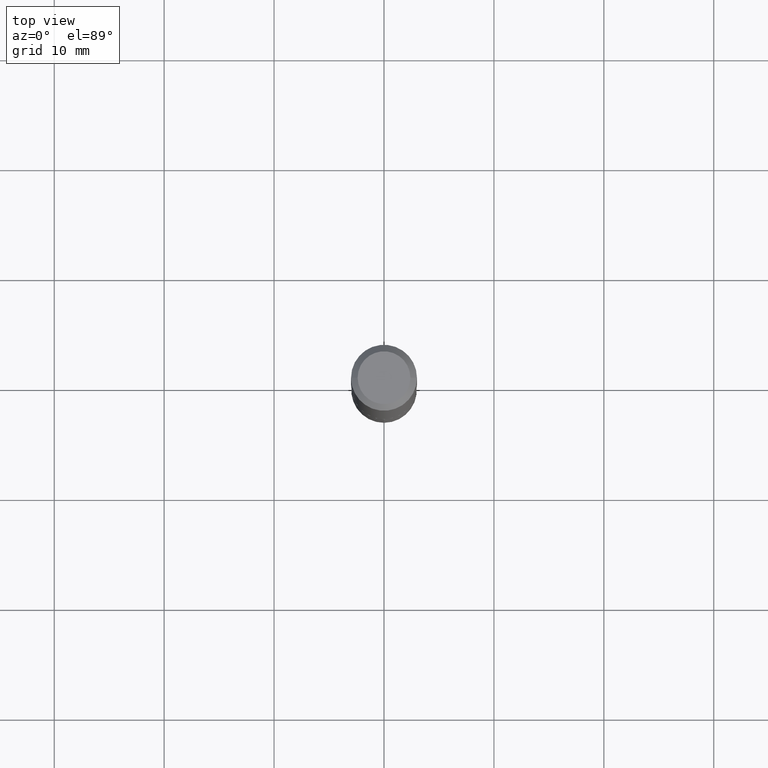
[diagram: clean part render]
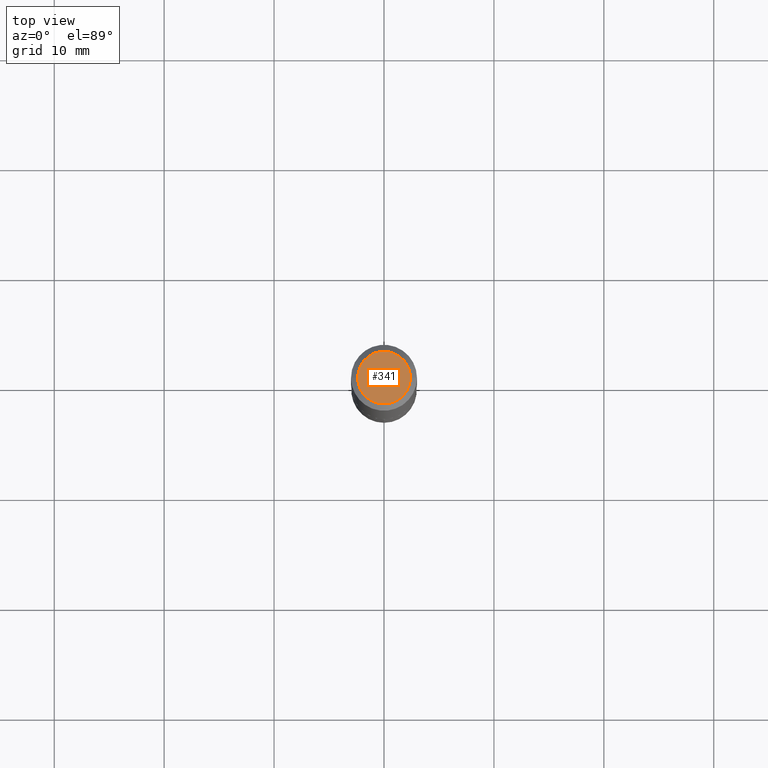
[diagram: same view with one face highlighted and labeled with its STEP entity id]
A machine part, top view. The second image highlights one B-rep face of the part: STEP entity #341.
In plain terms, the highlighted planar face has unit normal (0, -0, -1).
Its self-contained STEP definition (entity closure, byte-faithful):
#10 = EDGE_CURVE ( 'NONE', #490, #445, #326, .T. ) ;
#22 = CARTESIAN_POINT ( 'NONE',  ( -0.09447999999999998066, 7.009847083995354710E-16, -2.700101262760559836E-17 ) ) ;
#29 = ORIENTED_EDGE ( 'NONE', *, *, #393, .T. ) ;
#31 = CIRCLE ( 'NONE', #440, 0.09447999999999998066 ) ;
#76 = DIRECTION ( 'NONE',  ( 2.438088387897960049E-29, -3.491481338843145188E-15, -1.000000000000000000 ) ) ;
#116 = EDGE_LOOP ( 'NONE', ( #29, #157 ) ) ;
#124 = FACE_OUTER_BOUND ( 'NONE', #116, .T. ) ;
#143 = CARTESIAN_POINT ( 'NONE',  ( 0.09447999999999998066, -7.704367267948738690E-16, -2.700101262759583929E-17 ) ) ;
#157 = ORIENTED_EDGE ( 'NONE', *, *, #10, .T. ) ;
#173 = DIRECTION ( 'NONE',  ( -1.000000000000000000, 6.982962677686265922E-15, -4.876176775795935793E-29 ) ) ;
#186 = DIRECTION ( 'NONE',  ( 1.000000000000000000, -6.982962677686267499E-15, 4.875432709231658792E-29 ) ) ;
#196 = DIRECTION ( 'NONE',  ( 1.000000000000000000, -6.982962677686267499E-15, 4.875432709231658792E-29 ) ) ;
#220 = CARTESIAN_POINT ( 'NONE',  ( 6.603013411620882309E-46, -9.427353171913646324E-32, -2.700101262760083747E-17 ) ) ;
#223 = DIRECTION ( 'NONE',  ( -2.445468806185136597E-29, 3.491481338843145583E-15, 1.000000000000000000 ) ) ;
#242 = AXIS2_PLACEMENT_3D ( 'NONE', #464, #415, #196 ) ;
#272 = PLANE ( 'NONE',  #354 ) ;
#326 = CIRCLE ( 'NONE', #242, 0.09447999999999998066 ) ;
#341 = ADVANCED_FACE ( 'NONE', ( #124 ), #272, .F. ) ;
#354 = AXIS2_PLACEMENT_3D ( 'NONE', #420, #76, #173 ) ;
#393 = EDGE_CURVE ( 'NONE', #445, #490, #31, .T. ) ;
#415 = DIRECTION ( 'NONE',  ( -2.445468806185136597E-29, 3.491481338843145583E-15, 1.000000000000000000 ) ) ;
#420 = CARTESIAN_POINT ( 'NONE',  ( 3.301506705810441154E-46, -4.713676585956823162E-32, -1.350050631380041873E-17 ) ) ;
#440 = AXIS2_PLACEMENT_3D ( 'NONE', #220, #223, #186 ) ;
#445 = VERTEX_POINT ( 'NONE', #22 ) ;
#464 = CARTESIAN_POINT ( 'NONE',  ( 6.603013411620882309E-46, -9.427353171913646324E-32, -2.700101262760083747E-17 ) ) ;
#490 = VERTEX_POINT ( 'NONE', #143 ) ;